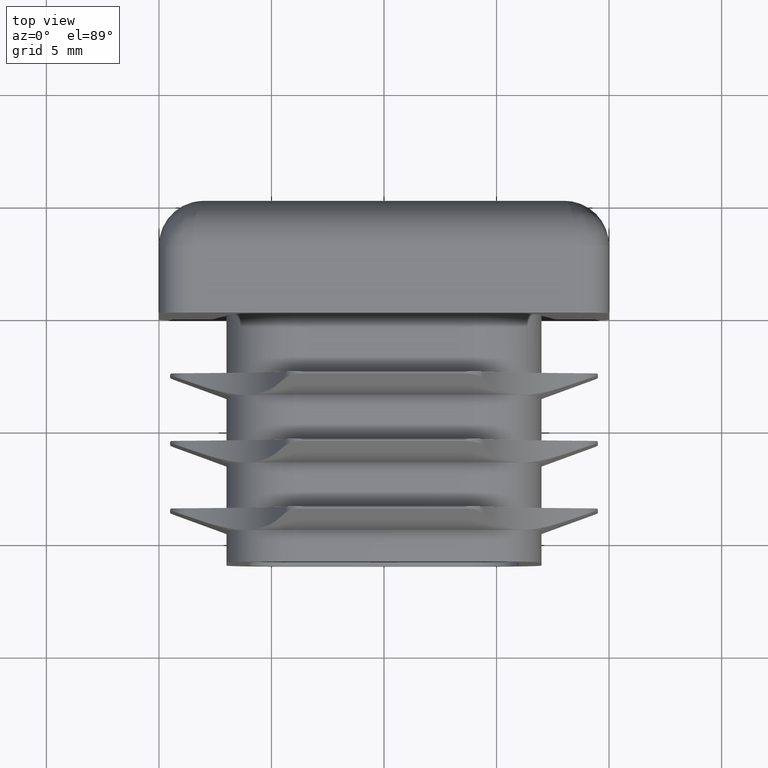
[diagram: clean part render]
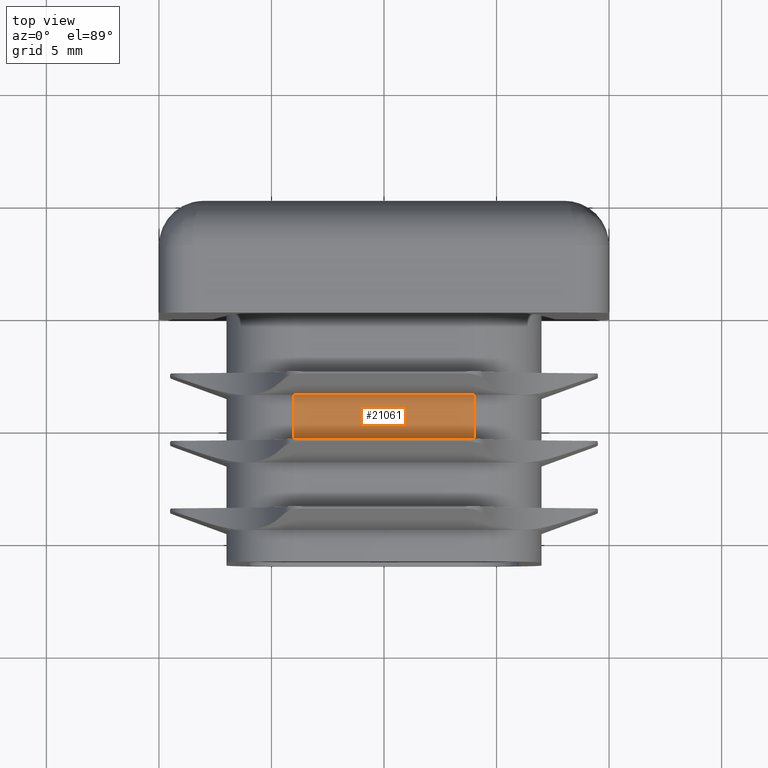
[diagram: same view with one face highlighted and labeled with its STEP entity id]
A machine part, top view. The second image highlights one B-rep face of the part: STEP entity #21061.
In plain terms, the highlighted planar face has unit normal (0, 0, -1).
Its self-contained STEP definition (entity closure, byte-faithful):
#1168 = PLANE ( 'NONE',  #3901 ) ;
#1473 = LINE ( 'NONE', #10393, #13180 ) ;
#1799 = VERTEX_POINT ( 'NONE', #14093 ) ;
#1823 = ORIENTED_EDGE ( 'NONE', *, *, #5889, .F. ) ;
#3901 = AXIS2_PLACEMENT_3D ( 'NONE', #15888, #9471, #17517 ) ;
#4625 = VECTOR ( 'NONE', #13559, 1000.000000000000000 ) ;
#4715 = ORIENTED_EDGE ( 'NONE', *, *, #11283, .T. ) ;
#4931 = CARTESIAN_POINT ( 'NONE',  ( -3.999999999999982681, -11.00000000000000000, 7.000000000000006217 ) ) ;
#5352 = CARTESIAN_POINT ( 'NONE',  ( -3.999999999999976019, -3.600000000000000089, 6.999999999999994671 ) ) ;
#5641 = CARTESIAN_POINT ( 'NONE',  ( -3.999999999999982681, -5.599999999999999645, 7.000000000000006217 ) ) ;
#5889 = EDGE_CURVE ( 'NONE', #14465, #11253, #15067, .T. ) ;
#6054 = DIRECTION ( 'NONE',  ( 1.000000000000000000, 0.000000000000000000, -8.673617379884080832E-16 ) ) ;
#7072 = LINE ( 'NONE', #14123, #10370 ) ;
#7352 = EDGE_CURVE ( 'NONE', #11253, #20316, #10193, .T. ) ;
#8457 = CARTESIAN_POINT ( 'NONE',  ( 3.999999999999982681, -3.599999999999995648, 6.999999999999999112 ) ) ;
#8511 = ORIENTED_EDGE ( 'NONE', *, *, #7352, .F. ) ;
#9471 = DIRECTION ( 'NONE',  ( 0.000000000000000000, 0.000000000000000000, -1.000000000000000000 ) ) ;
#10193 = LINE ( 'NONE', #5352, #4625 ) ;
#10370 = VECTOR ( 'NONE', #6054, 1000.000000000000000 ) ;
#10393 = CARTESIAN_POINT ( 'NONE',  ( 3.999999999999982681, -11.00000000000000000, 6.999999999999999112 ) ) ;
#10754 = VECTOR ( 'NONE', #16224, 1000.000000000000000 ) ;
#11253 = VERTEX_POINT ( 'NONE', #12018 ) ;
#11283 = EDGE_CURVE ( 'NONE', #1799, #20316, #1473, .T. ) ;
#12018 = CARTESIAN_POINT ( 'NONE',  ( -3.999999999999982681, -3.599999999999995648, 7.000000000000006217 ) ) ;
#12241 = EDGE_LOOP ( 'NONE', ( #13535, #4715, #8511, #1823 ) ) ;
#12651 = EDGE_CURVE ( 'NONE', #14465, #1799, #7072, .T. ) ;
#13180 = VECTOR ( 'NONE', #16932, 1000.000000000000000 ) ;
#13535 = ORIENTED_EDGE ( 'NONE', *, *, #12651, .T. ) ;
#13559 = DIRECTION ( 'NONE',  ( 1.000000000000000000, 0.000000000000000000, -8.673617379884080832E-16 ) ) ;
#14093 = CARTESIAN_POINT ( 'NONE',  ( 3.999999999999982681, -5.599999999999999645, 6.999999999999999112 ) ) ;
#14123 = CARTESIAN_POINT ( 'NONE',  ( -3.999999999999976019, -5.599999999999999645, 7.000000000000036415 ) ) ;
#14212 = FACE_OUTER_BOUND ( 'NONE', #12241, .T. ) ;
#14465 = VERTEX_POINT ( 'NONE', #5641 ) ;
#15067 = LINE ( 'NONE', #4931, #10754 ) ;
#15888 = CARTESIAN_POINT ( 'NONE',  ( -3.999999999999982681, -11.00000000000000000, 6.999999999999999112 ) ) ;
#16224 = DIRECTION ( 'NONE',  ( -0.000000000000000000, 1.000000000000000000, -0.000000000000000000 ) ) ;
#16932 = DIRECTION ( 'NONE',  ( -0.000000000000000000, 1.000000000000000000, -0.000000000000000000 ) ) ;
#17517 = DIRECTION ( 'NONE',  ( -1.000000000000000000, 0.000000000000000000, -0.000000000000000000 ) ) ;
#20316 = VERTEX_POINT ( 'NONE', #8457 ) ;
#21061 = ADVANCED_FACE ( 'NONE', ( #14212 ), #1168, .F. ) ;